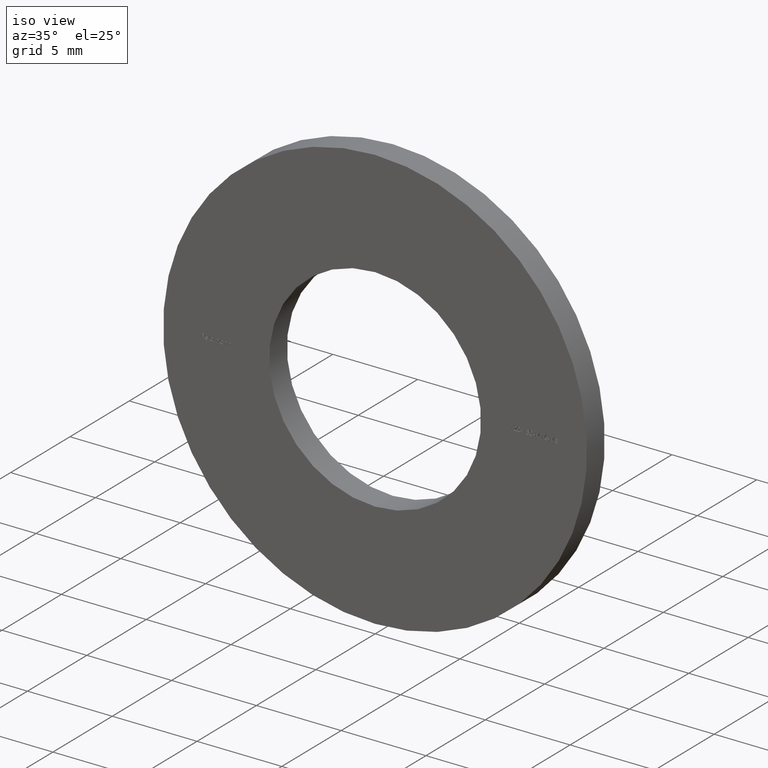
[diagram: clean part render]
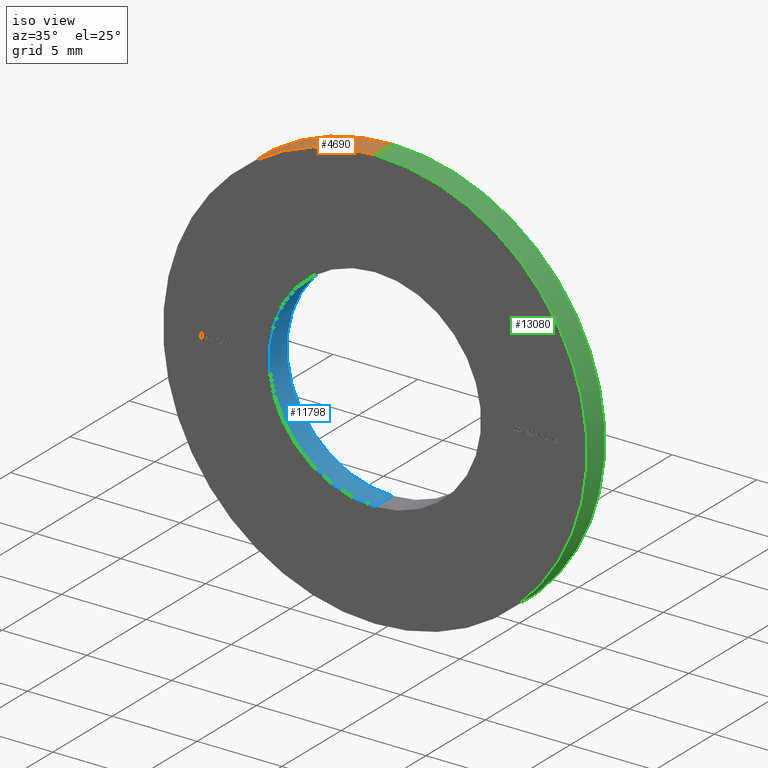
[diagram: same view with three faces highlighted in distinct colors, each labeled with its STEP entity id]
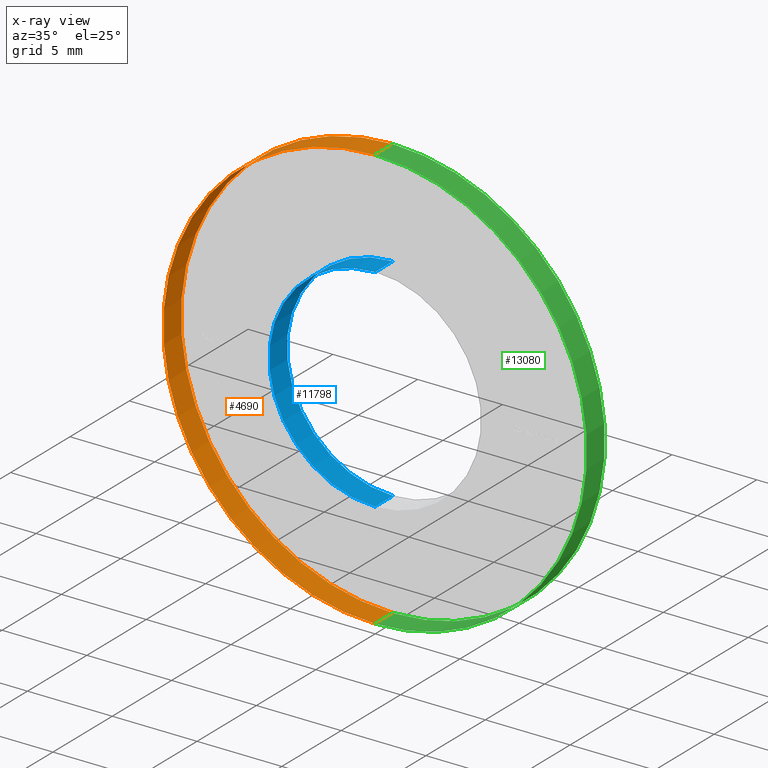
[diagram: x-ray of the same camera — body ghosted, the three highlighted faces saturated]
A machine part, iso view with three faces highlighted in distinct colors.
The next image is the same camera in x-ray (body ghosted, the three faces saturated) — at least one of them is partly hidden behind the body in this view.
Their STEP definitions:

[orange] entity #4690 — the highlighted cylindrical surface (partial cylindrical patch) has radius 12.5 mm, axis along (-0, -1, -0).
#62 = DIRECTION ( 'NONE',  ( -0.0000000000000000000, -1.000000000000000000, -0.0000000000000000000 ) ) ;
#435 = EDGE_CURVE ( 'NONE', #9461, #2174, #9798, .T. ) ;
#635 = CIRCLE ( 'NONE', #6923, 12.50000000000000000 ) ;
#1005 = VERTEX_POINT ( 'NONE', #6875 ) ;
#1154 = EDGE_CURVE ( 'NONE', #2174, #1005, #13291, .T. ) ;
#1765 = CARTESIAN_POINT ( 'NONE',  ( 0.0000000000000000000, 1.500000000000000000, -12.50000000000000000 ) ) ;
#1820 = EDGE_LOOP ( 'NONE', ( #12616, #7432, #11578, #11440 ) ) ;
#2174 = VERTEX_POINT ( 'NONE', #5825 ) ;
#3736 = CYLINDRICAL_SURFACE ( 'NONE', #4094, 12.50000000000000000 ) ;
#4094 = AXIS2_PLACEMENT_3D ( 'NONE', #4158, #8570, #6474 ) ;
#4158 = CARTESIAN_POINT ( 'NONE',  ( 0.0000000000000000000, 1.500000000000000000, 0.0000000000000000000 ) ) ;
#4189 = LINE ( 'NONE', #14083, #8251 ) ;
#4519 = VECTOR ( 'NONE', #11462, 1000.000000000000000 ) ;
#4690 = ADVANCED_FACE ( 'NONE', ( #12091 ), #3736, .T. ) ;
#5825 = CARTESIAN_POINT ( 'NONE',  ( 0.0000000000000000000, 0.0000000000000000000, -12.50000000000000000 ) ) ;
#6474 = DIRECTION ( 'NONE',  ( 0.0000000000000000000, 0.0000000000000000000, -1.000000000000000000 ) ) ;
#6875 = CARTESIAN_POINT ( 'NONE',  ( 1.530808498934191500E-015, 0.0000000000000000000, 12.50000000000000000 ) ) ;
#6923 = AXIS2_PLACEMENT_3D ( 'NONE', #12809, #14038, #11717 ) ;
#7432 = ORIENTED_EDGE ( 'NONE', *, *, #10421, .F. ) ;
#7811 = DIRECTION ( 'NONE',  ( 0.0000000000000000000, 0.0000000000000000000, 1.000000000000000000 ) ) ;
#8251 = VECTOR ( 'NONE', #62, 1000.000000000000000 ) ;
#8570 = DIRECTION ( 'NONE',  ( -0.0000000000000000000, -1.000000000000000000, -0.0000000000000000000 ) ) ;
#8995 = CARTESIAN_POINT ( 'NONE',  ( 0.0000000000000000000, 0.0000000000000000000, 0.0000000000000000000 ) ) ;
#9461 = VERTEX_POINT ( 'NONE', #12487 ) ;
#9798 = LINE ( 'NONE', #1765, #4519 ) ;
#10199 = DIRECTION ( 'NONE',  ( 0.0000000000000000000, 1.000000000000000000, 0.0000000000000000000 ) ) ;
#10421 = EDGE_CURVE ( 'NONE', #9461, #13007, #635, .T. ) ;
#11440 = ORIENTED_EDGE ( 'NONE', *, *, #1154, .T. ) ;
#11462 = DIRECTION ( 'NONE',  ( -0.0000000000000000000, -1.000000000000000000, -0.0000000000000000000 ) ) ;
#11578 = ORIENTED_EDGE ( 'NONE', *, *, #435, .T. ) ;
#11717 = DIRECTION ( 'NONE',  ( 0.0000000000000000000, 0.0000000000000000000, 1.000000000000000000 ) ) ;
#11892 = EDGE_CURVE ( 'NONE', #13007, #1005, #4189, .T. ) ;
#12091 = FACE_OUTER_BOUND ( 'NONE', #1820, .T. ) ;
#12397 = CARTESIAN_POINT ( 'NONE',  ( 1.530808498934191500E-015, 1.500000000000000000, 12.50000000000000000 ) ) ;
#12487 = CARTESIAN_POINT ( 'NONE',  ( 0.0000000000000000000, 1.500000000000000000, -12.50000000000000000 ) ) ;
#12616 = ORIENTED_EDGE ( 'NONE', *, *, #11892, .F. ) ;
#12809 = CARTESIAN_POINT ( 'NONE',  ( 0.0000000000000000000, 1.500000000000000000, 0.0000000000000000000 ) ) ;
#13007 = VERTEX_POINT ( 'NONE', #12397 ) ;
#13291 = CIRCLE ( 'NONE', #13496, 12.50000000000000000 ) ;
#13496 = AXIS2_PLACEMENT_3D ( 'NONE', #8995, #10199, #7811 ) ;
#14038 = DIRECTION ( 'NONE',  ( 0.0000000000000000000, 1.000000000000000000, 0.0000000000000000000 ) ) ;
#14083 = CARTESIAN_POINT ( 'NONE',  ( 1.530808498934191500E-015, 1.500000000000000000, 12.50000000000000000 ) ) ;

[blue] entity #11798 — the highlighted cylindrical surface (partial cylindrical patch) has radius 6.25 mm, axis along (-0, -1, -0).
#328 = DIRECTION ( 'NONE',  ( -0.0000000000000000000, -1.000000000000000000, -0.0000000000000000000 ) ) ;
#776 = DIRECTION ( 'NONE',  ( 0.0000000000000000000, 0.0000000000000000000, -1.000000000000000000 ) ) ;
#831 = CARTESIAN_POINT ( 'NONE',  ( 0.0000000000000000000, 1.500000000000000000, 0.0000000000000000000 ) ) ;
#844 = CARTESIAN_POINT ( 'NONE',  ( 7.654042494670957600E-016, 0.0000000000000000000, 6.250000000000000000 ) ) ;
#876 = DIRECTION ( 'NONE',  ( -0.0000000000000000000, -1.000000000000000000, -0.0000000000000000000 ) ) ;
#2352 = AXIS2_PLACEMENT_3D ( 'NONE', #5251, #11638, #12717 ) ;
#2525 = CIRCLE ( 'NONE', #10371, 6.250000000000000000 ) ;
#3498 = CARTESIAN_POINT ( 'NONE',  ( 0.0000000000000000000, 1.500000000000000000, -6.250000000000000000 ) ) ;
#3779 = LINE ( 'NONE', #7639, #9920 ) ;
#4303 = VERTEX_POINT ( 'NONE', #13775 ) ;
#4315 = LINE ( 'NONE', #3498, #9213 ) ;
#4573 = DIRECTION ( 'NONE',  ( 0.0000000000000000000, 1.000000000000000000, 0.0000000000000000000 ) ) ;
#5251 = CARTESIAN_POINT ( 'NONE',  ( 0.0000000000000000000, 1.500000000000000000, 0.0000000000000000000 ) ) ;
#5478 = CARTESIAN_POINT ( 'NONE',  ( 0.0000000000000000000, 0.0000000000000000000, -6.250000000000000000 ) ) ;
#5578 = EDGE_CURVE ( 'NONE', #13524, #6493, #2525, .T. ) ;
#6493 = VERTEX_POINT ( 'NONE', #844 ) ;
#6581 = VERTEX_POINT ( 'NONE', #7981 ) ;
#6963 = ORIENTED_EDGE ( 'NONE', *, *, #9877, .T. ) ;
#7048 = FACE_OUTER_BOUND ( 'NONE', #9166, .T. ) ;
#7639 = CARTESIAN_POINT ( 'NONE',  ( 7.654042494670957600E-016, 1.500000000000000000, 6.250000000000000000 ) ) ;
#7915 = CYLINDRICAL_SURFACE ( 'NONE', #10311, 6.250000000000000000 ) ;
#7981 = CARTESIAN_POINT ( 'NONE',  ( 0.0000000000000000000, 1.500000000000000000, -6.250000000000000000 ) ) ;
#8838 = ORIENTED_EDGE ( 'NONE', *, *, #5578, .F. ) ;
#8922 = DIRECTION ( 'NONE',  ( -0.0000000000000000000, -1.000000000000000000, -0.0000000000000000000 ) ) ;
#9166 = EDGE_LOOP ( 'NONE', ( #11193, #6963, #8838, #13817 ) ) ;
#9213 = VECTOR ( 'NONE', #328, 1000.000000000000000 ) ;
#9849 = DIRECTION ( 'NONE',  ( 0.0000000000000000000, 0.0000000000000000000, 1.000000000000000000 ) ) ;
#9877 = EDGE_CURVE ( 'NONE', #4303, #6493, #3779, .T. ) ;
#9880 = EDGE_CURVE ( 'NONE', #6581, #13524, #4315, .T. ) ;
#9920 = VECTOR ( 'NONE', #8922, 1000.000000000000000 ) ;
#9984 = EDGE_CURVE ( 'NONE', #6581, #4303, #12625, .T. ) ;
#10311 = AXIS2_PLACEMENT_3D ( 'NONE', #831, #876, #776 ) ;
#10371 = AXIS2_PLACEMENT_3D ( 'NONE', #13056, #4573, #9849 ) ;
#11193 = ORIENTED_EDGE ( 'NONE', *, *, #9984, .T. ) ;
#11638 = DIRECTION ( 'NONE',  ( 0.0000000000000000000, 1.000000000000000000, 0.0000000000000000000 ) ) ;
#11798 = ADVANCED_FACE ( 'NONE', ( #7048 ), #7915, .F. ) ;
#12625 = CIRCLE ( 'NONE', #2352, 6.250000000000000000 ) ;
#12717 = DIRECTION ( 'NONE',  ( 0.0000000000000000000, 0.0000000000000000000, 1.000000000000000000 ) ) ;
#13056 = CARTESIAN_POINT ( 'NONE',  ( 0.0000000000000000000, 0.0000000000000000000, 0.0000000000000000000 ) ) ;
#13524 = VERTEX_POINT ( 'NONE', #5478 ) ;
#13775 = CARTESIAN_POINT ( 'NONE',  ( 7.654042494670957600E-016, 1.500000000000000000, 6.250000000000000000 ) ) ;
#13817 = ORIENTED_EDGE ( 'NONE', *, *, #9880, .F. ) ;

[green] entity #13080 — the highlighted cylindrical surface (partial cylindrical patch) has radius 12.5 mm, axis along (-0, -1, -0).
#62 = DIRECTION ( 'NONE',  ( -0.0000000000000000000, -1.000000000000000000, -0.0000000000000000000 ) ) ;
#389 = CARTESIAN_POINT ( 'NONE',  ( 0.0000000000000000000, 0.0000000000000000000, 0.0000000000000000000 ) ) ;
#435 = EDGE_CURVE ( 'NONE', #9461, #2174, #9798, .T. ) ;
#1005 = VERTEX_POINT ( 'NONE', #6875 ) ;
#1239 = FACE_OUTER_BOUND ( 'NONE', #1410, .T. ) ;
#1410 = EDGE_LOOP ( 'NONE', ( #11369, #4607, #4578, #10679 ) ) ;
#1755 = CARTESIAN_POINT ( 'NONE',  ( 0.0000000000000000000, 1.500000000000000000, 0.0000000000000000000 ) ) ;
#1765 = CARTESIAN_POINT ( 'NONE',  ( 0.0000000000000000000, 1.500000000000000000, -12.50000000000000000 ) ) ;
#2096 = CYLINDRICAL_SURFACE ( 'NONE', #7096, 12.50000000000000000 ) ;
#2174 = VERTEX_POINT ( 'NONE', #5825 ) ;
#2851 = DIRECTION ( 'NONE',  ( -0.0000000000000000000, -1.000000000000000000, -0.0000000000000000000 ) ) ;
#4189 = LINE ( 'NONE', #14083, #8251 ) ;
#4519 = VECTOR ( 'NONE', #11462, 1000.000000000000000 ) ;
#4578 = ORIENTED_EDGE ( 'NONE', *, *, #13003, .T. ) ;
#4607 = ORIENTED_EDGE ( 'NONE', *, *, #11892, .T. ) ;
#5825 = CARTESIAN_POINT ( 'NONE',  ( 0.0000000000000000000, 0.0000000000000000000, -12.50000000000000000 ) ) ;
#5879 = DIRECTION ( 'NONE',  ( 0.0000000000000000000, 0.0000000000000000000, 1.000000000000000000 ) ) ;
#6875 = CARTESIAN_POINT ( 'NONE',  ( 1.530808498934191500E-015, 0.0000000000000000000, 12.50000000000000000 ) ) ;
#7096 = AXIS2_PLACEMENT_3D ( 'NONE', #1755, #2851, #9334 ) ;
#7745 = EDGE_CURVE ( 'NONE', #13007, #9461, #9741, .T. ) ;
#8107 = DIRECTION ( 'NONE',  ( 0.0000000000000000000, 1.000000000000000000, 0.0000000000000000000 ) ) ;
#8251 = VECTOR ( 'NONE', #62, 1000.000000000000000 ) ;
#9080 = CIRCLE ( 'NONE', #11980, 12.50000000000000000 ) ;
#9334 = DIRECTION ( 'NONE',  ( 0.0000000000000000000, 0.0000000000000000000, -1.000000000000000000 ) ) ;
#9461 = VERTEX_POINT ( 'NONE', #12487 ) ;
#9741 = CIRCLE ( 'NONE', #13240, 12.50000000000000000 ) ;
#9798 = LINE ( 'NONE', #1765, #4519 ) ;
#10679 = ORIENTED_EDGE ( 'NONE', *, *, #435, .F. ) ;
#11369 = ORIENTED_EDGE ( 'NONE', *, *, #7745, .F. ) ;
#11462 = DIRECTION ( 'NONE',  ( -0.0000000000000000000, -1.000000000000000000, -0.0000000000000000000 ) ) ;
#11763 = DIRECTION ( 'NONE',  ( 0.0000000000000000000, 0.0000000000000000000, 1.000000000000000000 ) ) ;
#11892 = EDGE_CURVE ( 'NONE', #13007, #1005, #4189, .T. ) ;
#11980 = AXIS2_PLACEMENT_3D ( 'NONE', #389, #8107, #5879 ) ;
#12397 = CARTESIAN_POINT ( 'NONE',  ( 1.530808498934191500E-015, 1.500000000000000000, 12.50000000000000000 ) ) ;
#12487 = CARTESIAN_POINT ( 'NONE',  ( 0.0000000000000000000, 1.500000000000000000, -12.50000000000000000 ) ) ;
#12741 = CARTESIAN_POINT ( 'NONE',  ( 0.0000000000000000000, 1.500000000000000000, 0.0000000000000000000 ) ) ;
#13003 = EDGE_CURVE ( 'NONE', #1005, #2174, #9080, .T. ) ;
#13007 = VERTEX_POINT ( 'NONE', #12397 ) ;
#13080 = ADVANCED_FACE ( 'NONE', ( #1239 ), #2096, .T. ) ;
#13240 = AXIS2_PLACEMENT_3D ( 'NONE', #12741, #13881, #11763 ) ;
#13881 = DIRECTION ( 'NONE',  ( 0.0000000000000000000, 1.000000000000000000, 0.0000000000000000000 ) ) ;
#14083 = CARTESIAN_POINT ( 'NONE',  ( 1.530808498934191500E-015, 1.500000000000000000, 12.50000000000000000 ) ) ;